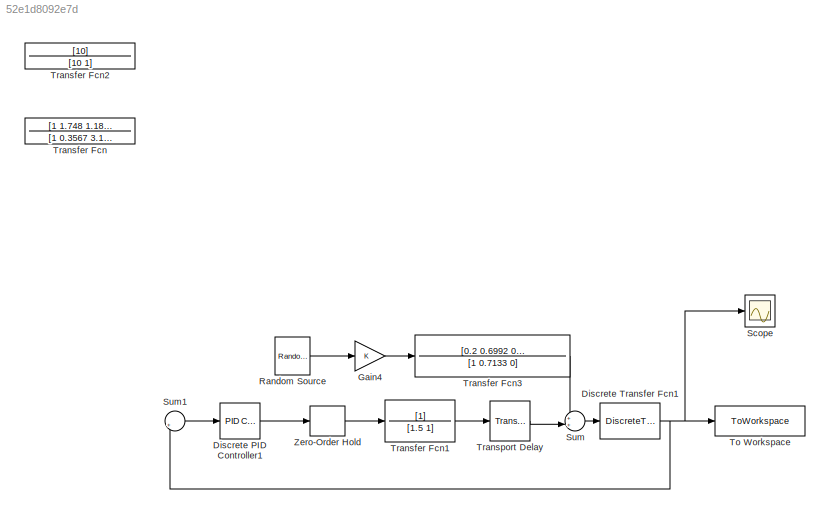
MODEL slx_52e1d8092e7d
KIND model
CONFIG AbsTol = auto
CONFIG EnableMultiTasking = off
CONFIG FixedStep = auto
CONFIG MaxStep = auto
CONFIG MinStep = auto
CONFIG RelTol = 1e-3
CONFIG SampleTimeConstraint = Unconstrained
CONFIG SolverName = VariableStepAuto
CONFIG StartTime = 0.0
CONFIG StopTime = 15000
BLOCK [Reference] Discrete PID Controller1  REF=pid_lib/PID Controller
  Ports = [1, 1]
  SourceBlock = pid_lib/PID Controller
  SourceProductBaseCode = SL
  SourceType = PID 1dof
BLOCK [DiscreteTransferFcn] Discrete Transfer Fcn1
  Denominator = [1]
  InputPortMap = u0
  Ports = [1, 1]
  SampleTime = Ts
BLOCK [Gain] Gain4
BLOCK [Reference] Random Source  REF=dspsrcs4/Random
Source
  Ports = [0, 1]
  SourceBlock = dspsrcs4/Random\nSource
  SourceProductBaseCode = DS
  SourceType = Random Source
  UserDataPersistent = on
BLOCK [Scope] Scope
  Floating = off
  NumInputPorts = 1
  Ports = [1]
  ScopeSpecificationString = Simulink.scopes.TimeScopeBlockCfg('CurrentConfiguration', extmgr.ConfigurationSet(extmgr.Configuration('Core','General UI',true),extmgr.Configuration('Core','Source UI',true),extmgr.Configuration('Sources','WiredSimulink',true,'DataLoggingVariableName','ScopeData1'),extmgr.Configuration('Visuals','Time Domain',true,'SerializedDisplays',{struct('MinYLimReal','-10.65309','MaxYLimReal','9.59632','YLa...<+1414ch>
BLOCK [Sum] Sum
  Inputs = ++|
  Ports = [2, 1]
BLOCK [Sum] Sum1
  Inputs = |+-
  Ports = [2, 1]
BLOCK [ToWorkspace] To Workspace
  FixptAsFi = on
  MaxDataPoints = inf
  Ports = [1]
  SampleTime = Ts
  VariableName = y1
BLOCK [TransferFcn] Transfer Fcn
  Denominator = [1 0.3567 3.168e-16]
  Numerator = [1 1.748 1.189]
BLOCK [TransferFcn] Transfer Fcn1
  Denominator = [1.5 1]
BLOCK [TransferFcn] Transfer Fcn2
  Denominator = [10 1]
  Numerator = [10]
BLOCK [TransferFcn] Transfer Fcn3
  Denominator = [1 0.7133 0]
  Numerator = [0.2 0.6992 0.9512]
BLOCK [TransportDelay] Transport Delay
  DelayTime = 5
  Ports = [1, 1]
BLOCK [ZeroOrderHold] Zero-Order Hold
  SampleTime = Ts
LINE Discrete PID Controller1:1 -> Zero-Order Hold:1
NET Discrete Transfer Fcn1:1 -> Scope:1, Sum1:2, To Workspace:1
LINE Gain4:1 -> Transfer Fcn3:1
LINE Random Source:1 -> Gain4:1
LINE Sum1:1 -> Discrete PID Controller1:1
LINE Sum:1 -> Discrete Transfer Fcn1:1
LINE Transfer Fcn1:1 -> Transport Delay:1
LINE Transfer Fcn3:1 -> Sum:1
LINE Transport Delay:1 -> Sum:2
LINE Zero-Order Hold:1 -> Transfer Fcn1:1
note: NET lines group one-source signal fan-out (src -> all destinations, sorted); 1:1 wires keep LINE
